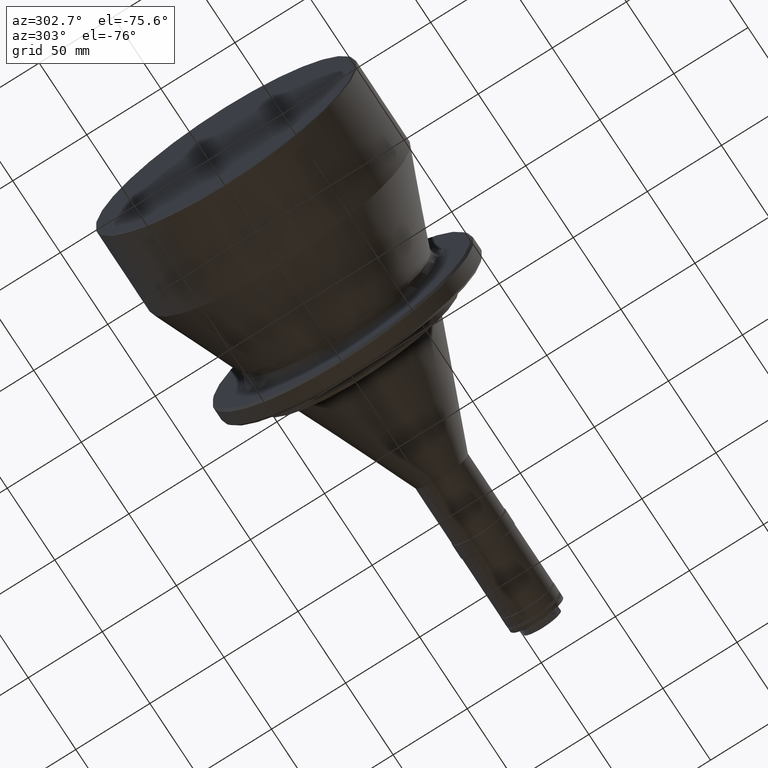
[diagram: clean part render]
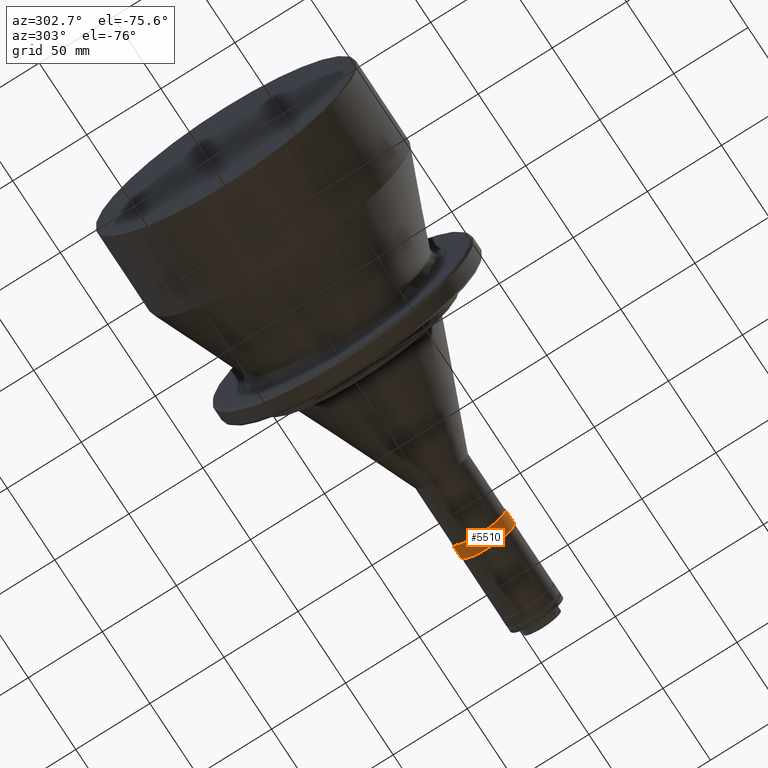
[diagram: same view with one face highlighted and labeled with its STEP entity id]
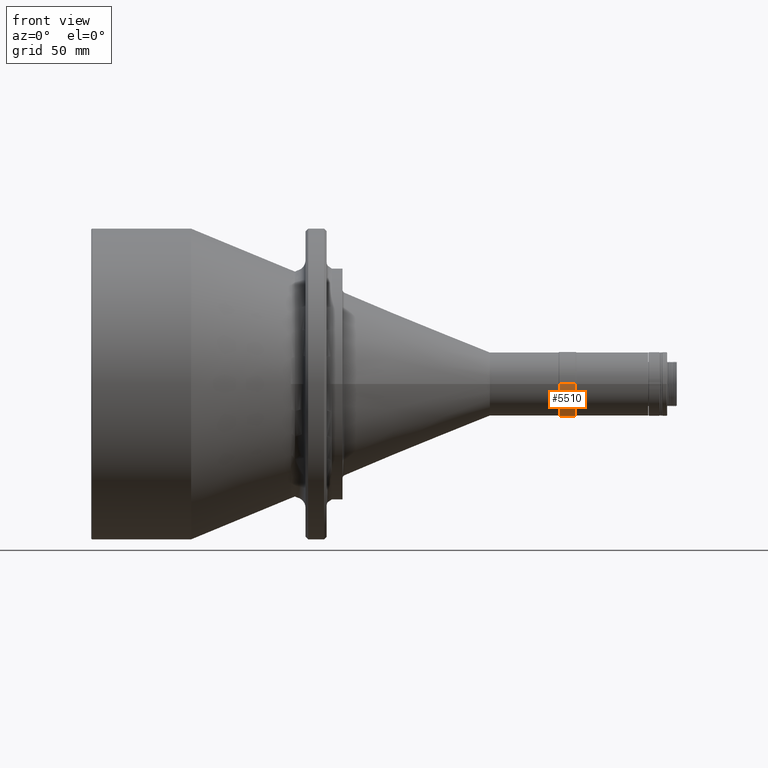
[diagram: same view with one face highlighted and labeled with its STEP entity id]
A machine part, auxiliary view. The second image highlights one B-rep face of the part: STEP entity #5510.
A second angle (front view) of the same face is appended — the face is thin or edge-on in the first view.
In plain terms, the highlighted cylindrical surface (edge-blend (fillet) strip) has radius 18.3 mm, axis along (1, -0, -0).
Its self-contained STEP definition (entity closure, byte-faithful):
#502 = VERTEX_POINT ( 'NONE', #1556 ) ;
#794 = DIRECTION ( 'NONE',  ( 1.000000000000000000, -8.492394904561674800E-017, -0.0000000000000000000 ) ) ;
#1326 = ORIENTED_EDGE ( 'NONE', *, *, #5426, .T. ) ;
#1451 = AXIS2_PLACEMENT_3D ( 'NONE', #7498, #6904, #3417 ) ;
#1556 = CARTESIAN_POINT ( 'NONE',  ( 284.1444470056000000, -18.29999999999999400, -68.22315000000000400 ) ) ;
#1704 = CIRCLE ( 'NONE', #5100, 18.29999999999999700 ) ;
#1723 = LINE ( 'NONE', #5329, #4541 ) ;
#1909 = DIRECTION ( 'NONE',  ( 0.0000000000000000000, 1.000000000000000000, 0.0000000000000000000 ) ) ;
#1941 = DIRECTION ( 'NONE',  ( 0.0000000000000000000, 1.000000000000000000, 0.0000000000000000000 ) ) ;
#2428 = LINE ( 'NONE', #4392, #3697 ) ;
#2495 = DIRECTION ( 'NONE',  ( 1.000000000000000000, -8.492394904561674800E-017, -0.0000000000000000000 ) ) ;
#2960 = CARTESIAN_POINT ( 'NONE',  ( 284.1444470056000000, 18.30000000000000100, -68.22315000000000400 ) ) ;
#3016 = EDGE_CURVE ( 'NONE', #5770, #6309, #1704, .T. ) ;
#3417 = DIRECTION ( 'NONE',  ( 0.0000000000000000000, 1.000000000000000000, 0.0000000000000000000 ) ) ;
#3555 = ORIENTED_EDGE ( 'NONE', *, *, #6989, .F. ) ;
#3667 = CARTESIAN_POINT ( 'NONE',  ( 293.5444470056000300, -18.29999999999999400, -68.22315000000000400 ) ) ;
#3697 = VECTOR ( 'NONE', #4494, 1000.000000000000000 ) ;
#4261 = CARTESIAN_POINT ( 'NONE',  ( 293.5444470056000300, 4.380637801583095300E-015, -68.22315000000000400 ) ) ;
#4351 = VERTEX_POINT ( 'NONE', #2960 ) ;
#4392 = CARTESIAN_POINT ( 'NONE',  ( 345.1275145715000000, -18.29999999999999700, -68.22315000000000400 ) ) ;
#4494 = DIRECTION ( 'NONE',  ( 1.000000000000000000, -8.492394904561674800E-017, -0.0000000000000000000 ) ) ;
#4541 = VECTOR ( 'NONE', #794, 1000.000000000000000 ) ;
#4718 = ORIENTED_EDGE ( 'NONE', *, *, #7341, .T. ) ;
#4804 = CARTESIAN_POINT ( 'NONE',  ( 293.5444470056000300, 18.30000000000000100, -68.22315000000000400 ) ) ;
#4807 = CARTESIAN_POINT ( 'NONE',  ( 345.1275145715000000, 0.0000000000000000000, -68.22315000000000400 ) ) ;
#5100 = AXIS2_PLACEMENT_3D ( 'NONE', #4261, #6497, #1909 ) ;
#5329 = CARTESIAN_POINT ( 'NONE',  ( 345.1275145715000000, 18.29999999999999700, -68.22315000000000400 ) ) ;
#5426 = EDGE_CURVE ( 'NONE', #4351, #6309, #1723, .T. ) ;
#5510 = ADVANCED_FACE ( 'NONE', ( #7371 ), #5983, .T. ) ;
#5534 = AXIS2_PLACEMENT_3D ( 'NONE', #4807, #2495, #1941 ) ;
#5770 = VERTEX_POINT ( 'NONE', #3667 ) ;
#5983 = CYLINDRICAL_SURFACE ( 'NONE', #5534, 18.29999999999999700 ) ;
#6309 = VERTEX_POINT ( 'NONE', #4804 ) ;
#6497 = DIRECTION ( 'NONE',  ( 1.000000000000000000, -8.492394904561674800E-017, -0.0000000000000000000 ) ) ;
#6666 = EDGE_LOOP ( 'NONE', ( #3555, #4718, #1326, #7167 ) ) ;
#6904 = DIRECTION ( 'NONE',  ( 1.000000000000000000, -8.492394904561674800E-017, -0.0000000000000000000 ) ) ;
#6989 = EDGE_CURVE ( 'NONE', #502, #5770, #2428, .T. ) ;
#7154 = CIRCLE ( 'NONE', #1451, 18.29999999999999700 ) ;
#7167 = ORIENTED_EDGE ( 'NONE', *, *, #3016, .F. ) ;
#7341 = EDGE_CURVE ( 'NONE', #502, #4351, #7154, .T. ) ;
#7371 = FACE_OUTER_BOUND ( 'NONE', #6666, .T. ) ;
#7498 = CARTESIAN_POINT ( 'NONE',  ( 284.1444470056000000, 5.178922922611894400E-015, -68.22315000000000400 ) ) ;